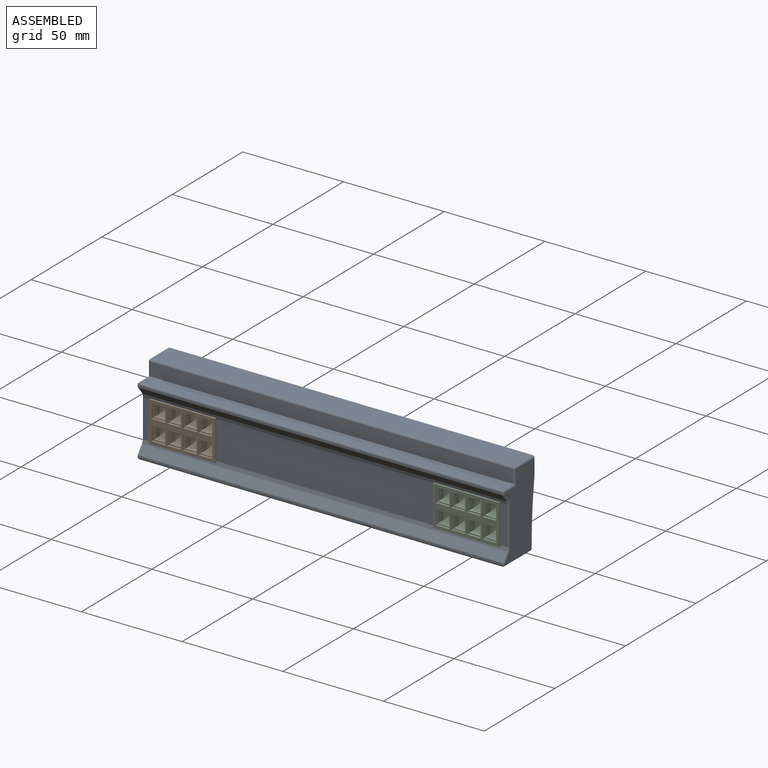
[diagram: assembled view]
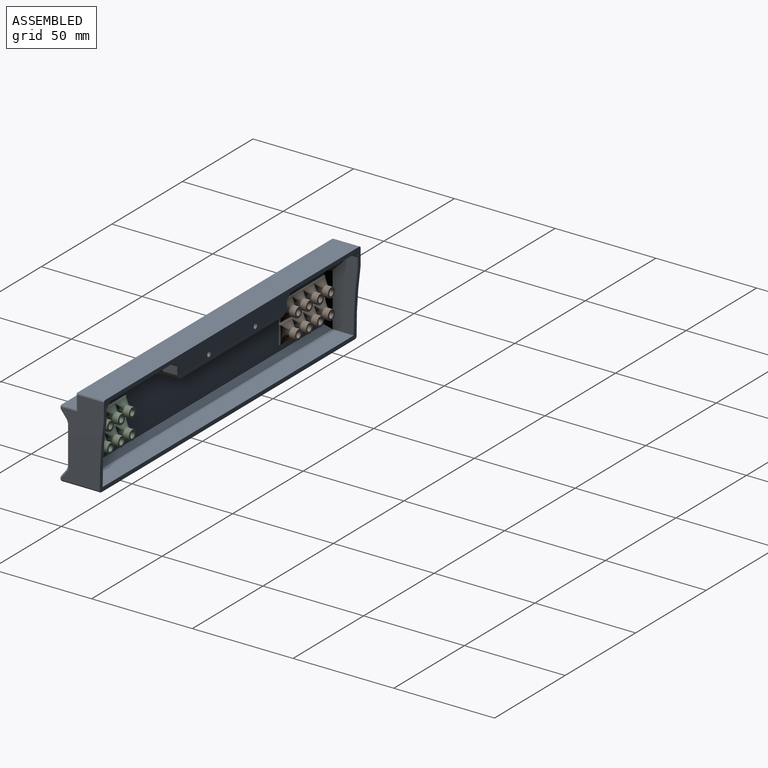
[diagram: assembled view, second angle]
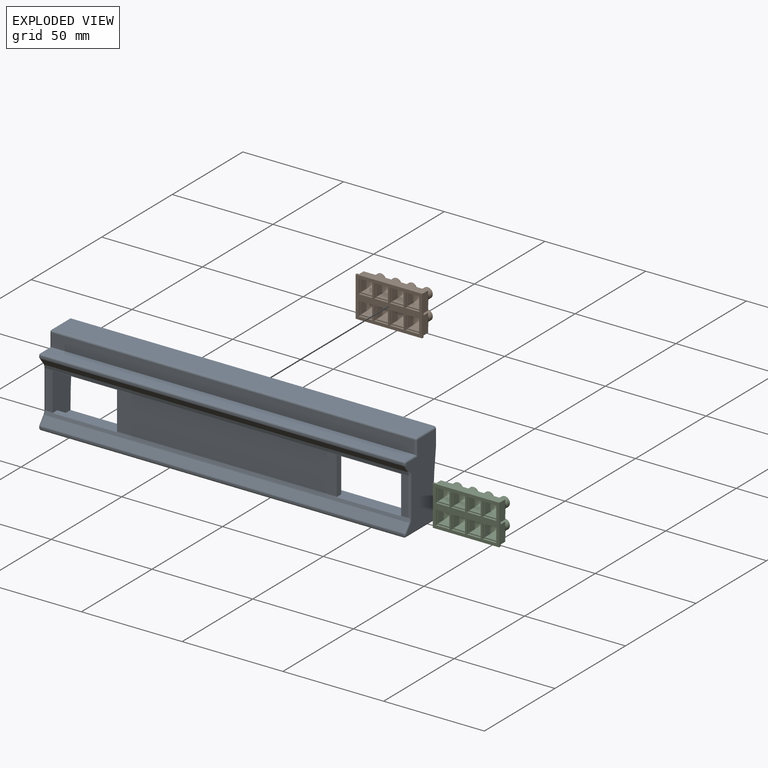
[diagram: exploded view]
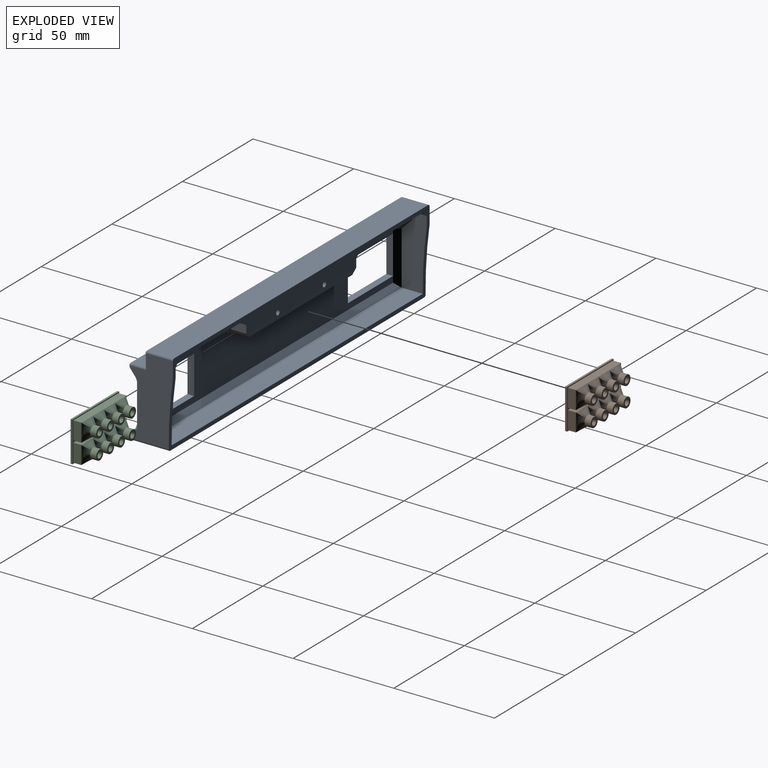
[diagram: exploded view, second angle]
ASSEMBLY  parts=3 mates=2
PART A: 100 faces, bbox 182x22x42 mm
  f0: plane 35.5x12.5mm, normal (-1,0,0), area 368.6mm2, adj f3,f4,f64,f85,f91,f95,f96
  f1: plane 35.5x12.5mm, normal (1,0,0), area 368.6mm2, adj f3,f4,f64,f78,f83,f89,f90
  f2: plane 83x12.24mm, normal (0,0,-1), area 918.2mm2, adj f24,f81,f88,f94,f98,f99
  f3: plane 182x9mm, normal (0,1,0), area 940mm2, adj f0,f1,f4,f14,f17,f18,f24,f30
  f4: cylinder r=220mm len=182mm, axis (-1,0,0), area 487.4mm2, adj f0,f1,f3,f13,f14,f17,f31,f57
  f5: plane 32x3.3mm, normal (0,0,-1), area 105.7mm2, adj f6,f8,f20,f65
  f6: plane 19x3.38mm, normal (1,0,0), area 62.8mm2, adj f5,f7,f20,f62,f65
  f7: plane 32x3.38mm, normal (0,0,1), area 108.2mm2, adj f6,f8,f62,f65
  f8: plane 19x3.38mm, normal (-1,0,0), area 62.8mm2, adj f5,f7,f20,f62,f91
  f9: plane 32x3.3mm, normal (0,0,-1), area 105.7mm2, adj f10,f12,f20,f65
  f10: plane 19x3.38mm, normal (1,0,0), area 62.8mm2, adj f9,f11,f20,f62,f90
  f11: plane 32x3.38mm, normal (0,0,1), area 108.2mm2, adj f10,f12,f62,f65
  f12: plane 19x3.38mm, normal (-1,0,0), area 62.8mm2, adj f9,f11,f20,f62,f65
  f13: plane 180x19mm, normal (0,0,-1), area 3420mm2, adj f4,f29,f31,f57
  f14: plane 40x21mm, normal (-1,0,0), area 637.2mm2, adj f3,f4,f44,f46,f47,f49,f51,f52
  f15: plane 180x0.66mm, normal (0,-1,0), area 117.9mm2, adj f27,f29,f35,f55
  f16: plane 180x0.66mm, normal (0,-1,0), area 117.9mm2, adj f25,f28,f40,f49
  f17: plane 40x21mm, normal (1,0,0), area 637.2mm2, adj f3,f4,f30,f31,f34,f35,f36,f39
  f18: plane 180x13mm, normal (0,0,1), area 2340mm2, adj f3,f26,f30,f44
  f19: plane 180x3.67mm, normal (0,-0.79,-0.62), area 837.9mm2, adj f28,f43,f51,f59
  f20: plane 180x19mm, normal (0,-1,0), area 2218.4mm2, adj f5,f6,f8,f9,f10,f12,f41,f52
  f21: plane 180x3.67mm, normal (0,-0.79,0.62), area 837.9mm2, adj f27,f39,f53,f62
  f22: plane 180x6.55mm, normal (0,-1,0), area 1179mm2, adj f23,f26,f34,f46
  f23: plane 180x7mm, normal (0,0,1), area 1260mm2, adj f22,f25,f36,f47
  f24: cylinder r=220mm len=77mm, axis (-1,0,0), area 151.3mm2, adj f2,f3,f81,f98
  f25: cylinder r=1mm len=180mm, axis (1,0,0), area 282.7mm2, adj f16,f23,f38,f48
  f26: cylinder r=1mm len=180mm, axis (-1,0,0), area 282.7mm2, adj f18,f22,f32,f45
  f27: cylinder r=1mm len=180mm, axis (-1,0,0), area 119.5mm2, adj f15,f21,f37,f54
  f28: cylinder r=1mm len=180mm, axis (1,0,0), area 119.5mm2, adj f16,f19,f42,f50
  f29: cylinder r=1mm len=180mm, axis (-1,0,0), area 282.7mm2, adj f13,f15,f33,f56
  f30: cylinder r=1mm len=13mm, axis (0,1,0), area 20.4mm2, adj f3,f17,f18,f32
  f31: cylinder r=1mm len=19mm, axis (0,-1,0), area 29.8mm2, adj f4,f13,f17,f33
  f32: sphere r=1mm, area 1.6mm2, adj f26,f30,f34
  f33: sphere r=1mm, area 1.6mm2, adj f29,f31,f35
  f34: cylinder r=1mm len=7.55mm, axis (0,0,-1), area 11.1mm2, adj f17,f22,f32,f36
  f35: cylinder r=1mm len=1mm, axis (0,0,-1), area 1mm2, adj f15,f17,f33,f37
  f36: cylinder r=1mm len=8mm, axis (0,-1,0), area 11.8mm2, adj f17,f23,f34,f38
  f37: sphere r=1mm, area 0.7mm2, adj f27,f35,f39
  f38: sphere r=1mm, area 1.6mm2, adj f25,f36,f40
  f39: cylinder r=1mm len=5.34mm, axis (0,-0.62,-0.79), area 8.4mm2, adj f17,f21,f37,f63
  f40: cylinder r=1mm len=1mm, axis (0,0,-1), area 1mm2, adj f16,f17,f38,f42
  f41: cylinder r=1mm len=21.69mm, axis (0,0,-1), area 32mm2, adj f17,f20,f60,f63
  f42: sphere r=1mm, area 0.7mm2, adj f28,f40,f43
  f43: cylinder r=1mm len=5.34mm, axis (0,0.62,-0.79), area 8.4mm2, adj f17,f19,f42,f60
  f44: cylinder r=1mm len=13mm, axis (0,-1,0), area 20.4mm2, adj f3,f14,f18,f45
  f45: sphere r=1mm, area 1.6mm2, adj f26,f44,f46
  f46: cylinder r=1mm len=7.55mm, axis (0,0,-1), area 11.1mm2, adj f14,f22,f45,f47
  f47: cylinder r=1mm len=8mm, axis (0,-1,0), area 11.8mm2, adj f14,f23,f46,f48
  f48: sphere r=1mm, area 1.6mm2, adj f25,f47,f49
  f49: cylinder r=1mm len=1mm, axis (0,0,1), area 1mm2, adj f14,f16,f48,f50
  f50: sphere r=1mm, area 0.7mm2, adj f28,f49,f51
  f51: cylinder r=1mm len=5.34mm, axis (0,0.62,-0.79), area 8.4mm2, adj f14,f19,f50,f58
  f52: cylinder r=1mm len=21.69mm, axis (0,0,-1), area 32mm2, adj f14,f20,f58,f61
  f53: cylinder r=1mm len=5.34mm, axis (0,-0.62,-0.79), area 8.4mm2, adj f14,f21,f54,f61
  f54: sphere r=1mm, area 0.7mm2, adj f27,f53,f55
  f55: cylinder r=1mm len=1mm, axis (0,0,1), area 1mm2, adj f14,f15,f54,f56
  f56: sphere r=1mm, area 1.6mm2, adj f29,f55,f57
  f57: cylinder r=1mm len=19mm, axis (0,1,0), area 29.8mm2, adj f4,f13,f14,f56
  f58: bspline ~1.81x1.64mm, area 1.3mm2, adj f51,f52,f59
  f59: plane 180x1.79mm, normal (0,-0.95,-0.33), area 340.3mm2, adj f19,f20,f58,f60
  f60: bspline ~1.81x1.64mm, area 1.3mm2, adj f41,f43,f59
  f61: bspline ~1.81x1.64mm, area 1.3mm2, adj f52,f53,f62
  f62: plane 180x1.79mm, normal (0,-0.95,0.33), area 325.1mm2, adj f6,f7,f8,f10,f11,f12,f20,f21
  f63: bspline ~1.81x1.64mm, area 1.3mm2, adj f39,f41,f62
  f64: plane 178x10.48mm, normal (0,0,1), area 1865.4mm2, adj f0,f1,f4,f84
  f65: plane 173x24mm, normal (0,1,0), area 2936mm2, adj f5,f6,f7,f9,f11,f12,f84,f90
  f66: cone r=0mm half-angle=59deg, axis (0,1,0), area 5.7mm2, adj f67
  f67: cylinder r=1.25mm len=10mm, axis (0,1,0), area 78.5mm2, adj f3,f66
  f68: cone r=0mm half-angle=59deg, axis (0,1,0), area 5.7mm2, adj f69
  f69: cylinder r=1.25mm len=10mm, axis (0,1,0), area 78.5mm2, adj f3,f68
  f70: plane 7.5x4mm, normal (-1,0,0), area 30mm2, adj f3,f76,f81,f82
  f71: plane 45x7.5mm, normal (0,0,-1), area 337.5mm2, adj f3,f76,f77,f78
  f72: plane 45x4mm, normal (0,1,0), area 180mm2, adj f77,f82,f83,f94
  f73: plane 7.5x4mm, normal (1,0,0), area 30mm2, adj f3,f87,f97,f98
  f74: plane 45x7.5mm, normal (0,0,-1), area 337.5mm2, adj f3,f85,f86,f87
  f75: plane 45x4mm, normal (0,1,0), area 180mm2, adj f86,f94,f96,f97
  f76: plane 7.5x2.5mm, normal (-0.71,0,-0.71), area 26.5mm2, adj f3,f70,f71,f79
  f77: plane 45x2.5mm, normal (0,0.71,-0.71), area 159.1mm2, adj f71,f72,f79,f80
  f78: plane 7.5x2.5mm, normal (0.71,0,-0.71), area 26.5mm2, adj f1,f3,f71,f80
  f79: plane 2.5x2.5mm, normal (-0.58,0.58,-0.58), area 5.4mm2, adj f76,f77,f82
  f80: plane 2.5x2.5mm, normal (0.58,0.58,-0.58), area 5.4mm2, adj f77,f78,f83
  f81: plane 7.5x2.5mm, normal (-0.71,0,-0.71), area 26.1mm2, adj f2,f3,f24,f70,f88
  f82: plane 4x2.5mm, normal (-0.71,0.71,0), area 14.1mm2, adj f70,f72,f79,f88
  f83: plane 4x2.5mm, normal (0.71,0.71,0), area 14.1mm2, adj f1,f72,f80,f89
  f84: plane 178x2.5mm, normal (0,0.71,0.71), area 620.5mm2, adj f64,f65,f90,f91
  f85: plane 7.5x2.5mm, normal (-0.71,0,-0.71), area 26.5mm2, adj f0,f3,f74,f92
  f86: plane 45x2.5mm, normal (0,0.71,-0.71), area 159.1mm2, adj f74,f75,f92,f93
  f87: plane 7.5x2.5mm, normal (0.71,0,-0.71), area 26.5mm2, adj f3,f73,f74,f93
  f88: plane 5x5mm, normal (-0.58,0.58,-0.58), area 16.2mm2, adj f2,f81,f82,f94
  f89: plane 7.5x5mm, normal (0.58,0.58,-0.58), area 21.7mm2, adj f1,f83,f90,f94
  f90: plane 26.5x2.5mm, normal (0.71,0.71,0), area 89.3mm2, adj f1,f10,f65,f84,f89
  f91: plane 26.5x2.5mm, normal (-0.71,0.71,0), area 89.3mm2, adj f0,f8,f65,f84,f95
  f92: plane 2.5x2.5mm, normal (-0.58,0.58,-0.58), area 5.4mm2, adj f85,f86,f96
  f93: plane 2.5x2.5mm, normal (0.58,0.58,-0.58), area 5.4mm2, adj f86,f87,f97
  f94: plane 173x5mm, normal (0,0.71,-0.71), area 929.8mm2, adj f2,f65,f72,f75,f88,f89,f95,f99
  f95: plane 7.5x5mm, normal (-0.58,0.58,-0.58), area 21.7mm2, adj f0,f91,f94,f96
  f96: plane 4x2.5mm, normal (-0.71,0.71,0), area 14.1mm2, adj f0,f75,f92,f95
  f97: plane 4x2.5mm, normal (0.71,0.71,0), area 14.1mm2, adj f73,f75,f93,f99
  f98: plane 7.5x2.5mm, normal (0.71,0,-0.71), area 26.1mm2, adj f2,f3,f24,f73,f99
  f99: plane 5x5mm, normal (0.58,0.58,-0.58), area 16.2mm2, adj f2,f94,f97,f98
PART B: 176 faces, bbox 33x11x20 mm
  f0: plane 6.75x1mm, normal (0,0,-1), area 6.7mm2, adj f1,f3,f21,f82
  f1: plane 7x1mm, normal (-1,0,0), area 7mm2, adj f0,f2,f21,f82
  f2: plane 6.75x1mm, normal (0,0,1), area 6.7mm2, adj f1,f3,f21,f82
  f3: plane 7x1mm, normal (1,0,0), area 7mm2, adj f0,f2,f21,f82
  f4: plane 9x0.5mm, normal (0,1,0), area 4.5mm2, adj f22,f24,f25,f75
  f5: plane 7x1mm, normal (1,0,0), area 7mm2, adj f6,f8,f21,f66
  f6: plane 6.75x1mm, normal (0,0,-1), area 6.8mm2, adj f5,f7,f21,f66
  f7: plane 7x1mm, normal (-1,0,0), area 7mm2, adj f6,f8,f21,f66
  f8: plane 6.75x1mm, normal (0,0,1), area 6.8mm2, adj f5,f7,f21,f66
  f9: plane 7x1mm, normal (1,0,0), area 7mm2, adj f10,f12,f21,f50
  f10: plane 6.75x1mm, normal (0,0,-1), area 6.8mm2, adj f9,f11,f21,f50
  f11: plane 7x1mm, normal (-1,0,0), area 7mm2, adj f10,f12,f21,f50
  f12: plane 6.75x1mm, normal (0,0,1), area 6.8mm2, adj f9,f11,f21,f50
  f13: plane 7x1mm, normal (1,0,0), area 7mm2, adj f14,f16,f21,f34
  f14: plane 6.75x1mm, normal (0,0,-1), area 6.7mm2, adj f13,f15,f21,f34
  f15: plane 7x1mm, normal (-1,0,0), area 7mm2, adj f14,f16,f21,f34
  f16: plane 6.75x1mm, normal (0,0,1), area 6.7mm2, adj f13,f15,f21,f34
  f17: plane 20x1mm, normal (-1,0,0), area 20mm2, adj f18,f20,f21,f107
  f18: plane 33x1mm, normal (0,0,-1), area 33mm2, adj f17,f19,f20,f21
  f19: plane 20x1mm, normal (1,0,0), area 20mm2, adj f18,f20,f21,f107
  f20: plane 33x20mm, normal (0,1,0), area 84mm2, adj f17,f18,f19,f22,f23,f24,f25,f107
  f21: plane 33x20mm, normal (0,-1,0), area 282mm2, adj f0,f1,f2,f3,f5,f6,f7,f8
  f22: plane 32x4mm, normal (0,0,-1), area 128mm2, adj f4,f20,f23,f25,f28,f44,f60,f76
  f23: plane 9x4mm, normal (1,0,0), area 36mm2, adj f20,f22,f24,f29
  f24: plane 32x4mm, normal (0,0,1), area 128mm2, adj f4,f20,f23,f25,f26,f42,f58,f74
  f25: plane 9x4mm, normal (-1,0,0), area 36mm2, adj f4,f20,f22,f24
  f26: bspline ~8.25x3mm, area 23mm2, adj f24,f27,f29,f40,f42
  f27: bspline ~8.42x2.68mm, area 18.4mm2, adj f26,f28,f40,f45
  f28: bspline ~8.25x3mm, area 23mm2, adj f22,f27,f29,f40,f44
  f29: bspline ~9x3mm, area 24.1mm2, adj f23,f26,f28,f40
  f30: bspline ~6x3mm, area 14.3mm2, adj f31,f33,f37,f39
  f31: bspline ~6x3mm, area 14.3mm2, adj f30,f32,f38,f39
  f32: bspline ~6x3mm, area 14.3mm2, adj f31,f33,f36,f39
  f33: bspline ~6x3mm, area 14.3mm2, adj f30,f32,f35,f39
  f34: plane 7x6.75mm, normal (0,-1,0), area 11.2mm2, adj f13,f14,f15,f16,f35,f36,f37,f38
  f35: plane 6x4mm, normal (0,0,-1), area 24mm2, adj f33,f34,f36,f37
  f36: plane 6x4mm, normal (1,0,0), area 24mm2, adj f32,f34,f35,f38
  f37: plane 6x4mm, normal (-1,0,0), area 24mm2, adj f30,f34,f35,f38
  f38: plane 6x4mm, normal (0,0,1), area 24mm2, adj f31,f34,f36,f37
  f39: cylinder r=1.5mm len=3mm, axis (0,-1,0), area 28.3mm2, adj f30,f31,f32,f33,f41
  f40: cylinder r=2.5mm len=5mm, axis (0,-1,0), area 47.1mm2, adj f26,f27,f28,f29,f41
  f41: plane 5x5mm, normal (0,1,0), area 12.6mm2, adj f39,f40
  f42: bspline ~8.25x3mm, area 22.9mm2, adj f24,f26,f43,f45,f56,f58
  f43: bspline ~8.42x2.68mm, area 18.4mm2, adj f42,f44,f56,f61
  f44: bspline ~8.25x3mm, area 22.9mm2, adj f22,f28,f43,f45,f56,f60
  f45: bspline ~8.42x2.68mm, area 19.8mm2, adj f27,f42,f44,f56
  f46: bspline ~6x3mm, area 14.3mm2, adj f47,f49,f53,f55
  f47: bspline ~6x3mm, area 14.3mm2, adj f46,f48,f54,f55
  f48: bspline ~6x3mm, area 14.3mm2, adj f47,f49,f52,f55
  f49: bspline ~6x3mm, area 14.3mm2, adj f46,f48,f51,f55
  f50: plane 7x6.75mm, normal (0,-1,0), area 11.3mm2, adj f9,f10,f11,f12,f51,f52,f53,f54
  f51: plane 6x4mm, normal (0,0,-1), area 24mm2, adj f49,f50,f52,f53
  f52: plane 6x4mm, normal (1,0,0), area 24mm2, adj f48,f50,f51,f54
  f53: plane 6x4mm, normal (-1,0,0), area 24mm2, adj f46,f50,f51,f54
  f54: plane 6x4mm, normal (0,0,1), area 24mm2, adj f47,f50,f52,f53
  f55: cylinder r=1.5mm len=3mm, axis (0,-1,0), area 28.3mm2, adj f46,f47,f48,f49,f57
  f56: cylinder r=2.5mm len=5mm, axis (0,-1,0), area 47.1mm2, adj f42,f43,f44,f45,f57
  f57: plane 5x5mm, normal (0,1,0), area 12.6mm2, adj f55,f56
  f58: bspline ~8.25x3mm, area 22.9mm2, adj f24,f42,f59,f61,f72,f74
  f59: bspline ~8.42x2.68mm, area 18.4mm2, adj f58,f60,f72,f77
  f60: bspline ~8.25x3mm, area 22.9mm2, adj f22,f44,f59,f61,f72,f76
  f61: bspline ~8.42x2.68mm, area 19.8mm2, adj f43,f58,f60,f72
  f62: bspline ~6x3mm, area 14.3mm2, adj f63,f65,f69,f71
  f63: bspline ~6x3mm, area 14.3mm2, adj f62,f64,f70,f71
  f64: bspline ~6x3mm, area 14.3mm2, adj f63,f65,f68,f71
  f65: bspline ~6x3mm, area 14.3mm2, adj f62,f64,f67,f71
  f66: plane 7x6.75mm, normal (0,-1,0), area 11.3mm2, adj f5,f6,f7,f8,f67,f68,f69,f70
  f67: plane 6x4mm, normal (0,0,-1), area 24mm2, adj f65,f66,f68,f69
  f68: plane 6x4mm, normal (1,0,0), area 24mm2, adj f64,f66,f67,f70
  f69: plane 6x4mm, normal (-1,0,0), area 24mm2, adj f62,f66,f67,f70
  f70: plane 6x4mm, normal (0,0,1), area 24mm2, adj f63,f66,f68,f69
  f71: cylinder r=1.5mm len=3mm, axis (0,-1,0), area 28.3mm2, adj f62,f63,f64,f65,f73
  f72: cylinder r=2.5mm len=5mm, axis (0,-1,0), area 47.1mm2, adj f58,f59,f60,f61,f73
  f73: plane 5x5mm, normal (0,1,0), area 12.6mm2, adj f71,f72
  f74: bspline ~8.25x3mm, area 23mm2, adj f24,f58,f75,f77,f88
  f75: bspline ~9x3mm, area 22.4mm2, adj f4,f74,f76,f88
  f76: bspline ~8.25x3mm, area 23mm2, adj f22,f60,f75,f77,f88
  f77: bspline ~8.42x2.68mm, area 19.8mm2, adj f59,f74,f76,f88
  f78: bspline ~6x3mm, area 14.3mm2, adj f79,f81,f85,f87
  f79: bspline ~6x3mm, area 14.3mm2, adj f78,f80,f86,f87
  f80: bspline ~6x3mm, area 14.3mm2, adj f79,f81,f84,f87
  f81: bspline ~6x3mm, area 14.3mm2, adj f78,f80,f83,f87
  f82: plane 7x6.75mm, normal (0,-1,0), area 11.2mm2, adj f0,f1,f2,f3,f83,f84,f85,f86
  f83: plane 6x4mm, normal (0,0,-1), area 24mm2, adj f81,f82,f84,f85
  f84: plane 6x4mm, normal (1,0,0), area 24mm2, adj f80,f82,f83,f86
  f85: plane 6x4mm, normal (-1,0,0), area 24mm2, adj f78,f82,f83,f86
  f86: plane 6x4mm, normal (0,0,1), area 24mm2, adj f79,f82,f84,f85
  f87: cylinder r=1.5mm len=3mm, axis (0,-1,0), area 28.3mm2, adj f78,f79,f80,f81,f89
  f88: cylinder r=2.5mm len=5mm, axis (0,-1,0), area 47.1mm2, adj f74,f75,f76,f77,f89
  f89: plane 5x5mm, normal (0,1,0), area 12.6mm2, adj f87,f88
  f90: plane 6.75x1mm, normal (0,0,-1), area 6.7mm2, adj f21,f91,f93,f168
  f91: plane 7x1mm, normal (-1,0,0), area 7mm2, adj f21,f90,f92,f168
  f92: plane 6.75x1mm, normal (0,0,1), area 6.7mm2, adj f21,f91,f93,f168
  f93: plane 7x1mm, normal (1,0,0), area 7mm2, adj f21,f90,f92,f168
  f94: plane 9x0.5mm, normal (0,1,0), area 4.5mm2, adj f108,f110,f111,f161
  f95: plane 7x1mm, normal (1,0,0), area 7mm2, adj f21,f96,f98,f152
  f96: plane 6.75x1mm, normal (0,0,-1), area 6.8mm2, adj f21,f95,f97,f152
  f97: plane 7x1mm, normal (-1,0,0), area 7mm2, adj f21,f96,f98,f152
  f98: plane 6.75x1mm, normal (0,0,1), area 6.8mm2, adj f21,f95,f97,f152
  f99: plane 7x1mm, normal (1,0,0), area 7mm2, adj f21,f100,f102,f136
  f100: plane 6.75x1mm, normal (0,0,-1), area 6.8mm2, adj f21,f99,f101,f136
  f101: plane 7x1mm, normal (-1,0,0), area 7mm2, adj f21,f100,f102,f136
  f102: plane 6.75x1mm, normal (0,0,1), area 6.8mm2, adj f21,f99,f101,f136
  f103: plane 7x1mm, normal (1,0,0), area 7mm2, adj f21,f104,f106,f120
  f104: plane 6.75x1mm, normal (0,0,-1), area 6.7mm2, adj f21,f103,f105,f120
  f105: plane 7x1mm, normal (-1,0,0), area 7mm2, adj f21,f104,f106,f120
  f106: plane 6.75x1mm, normal (0,0,1), area 6.7mm2, adj f21,f103,f105,f120
  f107: plane 33x1mm, normal (0,0,1), area 33mm2, adj f17,f19,f20,f21
  f108: plane 32x4mm, normal (0,0,-1), area 128mm2, adj f20,f94,f109,f111,f114,f130,f146,f162
  f109: plane 9x4mm, normal (1,0,0), area 36mm2, adj f20,f108,f110,f115
  f110: plane 32x4mm, normal (0,0,1), area 128mm2, adj f20,f94,f109,f111,f112,f128,f144,f160
  f111: plane 9x4mm, normal (-1,0,0), area 36mm2, adj f20,f94,f108,f110
  f112: bspline ~8.25x3mm, area 23mm2, adj f110,f113,f115,f126,f128
  f113: bspline ~8.42x2.68mm, area 18.4mm2, adj f112,f114,f126,f131
  f114: bspline ~8.25x3mm, area 23mm2, adj f108,f113,f115,f126,f130
  f115: bspline ~9x3mm, area 24.1mm2, adj f109,f112,f114,f126
  f116: bspline ~6x3mm, area 14.3mm2, adj f117,f119,f123,f125
  f117: bspline ~6x3mm, area 14.3mm2, adj f116,f118,f124,f125
  f118: bspline ~6x3mm, area 14.3mm2, adj f117,f119,f122,f125
  f119: bspline ~6x3mm, area 14.3mm2, adj f116,f118,f121,f125
  f120: plane 7x6.75mm, normal (0,-1,0), area 11.2mm2, adj f103,f104,f105,f106,f121,f122,f123,f124
  f121: plane 6x4mm, normal (0,0,-1), area 24mm2, adj f119,f120,f122,f123
  f122: plane 6x4mm, normal (1,0,0), area 24mm2, adj f118,f120,f121,f124
  f123: plane 6x4mm, normal (-1,0,0), area 24mm2, adj f116,f120,f121,f124
  f124: plane 6x4mm, normal (0,0,1), area 24mm2, adj f117,f120,f122,f123
  f125: cylinder r=1.5mm len=3mm, axis (0,-1,0), area 28.3mm2, adj f116,f117,f118,f119,f127
  f126: cylinder r=2.5mm len=5mm, axis (0,-1,0), area 47.1mm2, adj f112,f113,f114,f115,f127
  f127: plane 5x5mm, normal (0,1,0), area 12.6mm2, adj f125,f126
  f128: bspline ~8.25x3mm, area 22.9mm2, adj f110,f112,f129,f131,f142,f144
  f129: bspline ~8.42x2.68mm, area 18.4mm2, adj f128,f130,f142,f147
  f130: bspline ~8.25x3mm, area 22.9mm2, adj f108,f114,f129,f131,f142,f146
  f131: bspline ~8.42x2.68mm, area 19.8mm2, adj f113,f128,f130,f142
  f132: bspline ~6x3mm, area 14.3mm2, adj f133,f135,f139,f141
  f133: bspline ~6x3mm, area 14.3mm2, adj f132,f134,f140,f141
  f134: bspline ~6x3mm, area 14.3mm2, adj f133,f135,f138,f141
  f135: bspline ~6x3mm, area 14.3mm2, adj f132,f134,f137,f141
  f136: plane 7x6.75mm, normal (0,-1,0), area 11.3mm2, adj f99,f100,f101,f102,f137,f138,f139,f140
  f137: plane 6x4mm, normal (0,0,-1), area 24mm2, adj f135,f136,f138,f139
  f138: plane 6x4mm, normal (1,0,0), area 24mm2, adj f134,f136,f137,f140
  f139: plane 6x4mm, normal (-1,0,0), area 24mm2, adj f132,f136,f137,f140
  f140: plane 6x4mm, normal (0,0,1), area 24mm2, adj f133,f136,f138,f139
  f141: cylinder r=1.5mm len=3mm, axis (0,-1,0), area 28.3mm2, adj f132,f133,f134,f135,f143
  f142: cylinder r=2.5mm len=5mm, axis (0,-1,0), area 47.1mm2, adj f128,f129,f130,f131,f143
  f143: plane 5x5mm, normal (0,1,0), area 12.6mm2, adj f141,f142
  f144: bspline ~8.25x3mm, area 22.9mm2, adj f110,f128,f145,f147,f158,f160
  f145: bspline ~8.42x2.68mm, area 18.4mm2, adj f144,f146,f158,f163
  f146: bspline ~8.25x3mm, area 22.9mm2, adj f108,f130,f145,f147,f158,f162
  f147: bspline ~8.42x2.68mm, area 19.8mm2, adj f129,f144,f146,f158
  f148: bspline ~6x3mm, area 14.3mm2, adj f149,f151,f155,f157
  f149: bspline ~6x3mm, area 14.3mm2, adj f148,f150,f156,f157
  f150: bspline ~6x3mm, area 14.3mm2, adj f149,f151,f154,f157
  f151: bspline ~6x3mm, area 14.3mm2, adj f148,f150,f153,f157
  f152: plane 7x6.75mm, normal (0,-1,0), area 11.3mm2, adj f95,f96,f97,f98,f153,f154,f155,f156
  f153: plane 6x4mm, normal (0,0,-1), area 24mm2, adj f151,f152,f154,f155
  f154: plane 6x4mm, normal (1,0,0), area 24mm2, adj f150,f152,f153,f156
  f155: plane 6x4mm, normal (-1,0,0), area 24mm2, adj f148,f152,f153,f156
  f156: plane 6x4mm, normal (0,0,1), area 24mm2, adj f149,f152,f154,f155
  f157: cylinder r=1.5mm len=3mm, axis (0,-1,0), area 28.3mm2, adj f148,f149,f150,f151,f159
  f158: cylinder r=2.5mm len=5mm, axis (0,-1,0), area 47.1mm2, adj f144,f145,f146,f147,f159
  f159: plane 5x5mm, normal (0,1,0), area 12.6mm2, adj f157,f158
  f160: bspline ~8.25x3mm, area 23mm2, adj f110,f144,f161,f163,f174
  f161: bspline ~9x3mm, area 22.4mm2, adj f94,f160,f162,f174
  f162: bspline ~8.25x3mm, area 23mm2, adj f108,f146,f161,f163,f174
  f163: bspline ~8.42x2.68mm, area 19.8mm2, adj f145,f160,f162,f174
  f164: bspline ~6x3mm, area 14.3mm2, adj f165,f167,f171,f173
  f165: bspline ~6x3mm, area 14.3mm2, adj f164,f166,f172,f173
  f166: bspline ~6x3mm, area 14.3mm2, adj f165,f167,f170,f173
  f167: bspline ~6x3mm, area 14.3mm2, adj f164,f166,f169,f173
  f168: plane 7x6.75mm, normal (0,-1,0), area 11.2mm2, adj f90,f91,f92,f93,f169,f170,f171,f172
  f169: plane 6x4mm, normal (0,0,-1), area 24mm2, adj f167,f168,f170,f171
  f170: plane 6x4mm, normal (1,0,0), area 24mm2, adj f166,f168,f169,f172
  f171: plane 6x4mm, normal (-1,0,0), area 24mm2, adj f164,f168,f169,f172
  f172: plane 6x4mm, normal (0,0,1), area 24mm2, adj f165,f168,f170,f171
  f173: cylinder r=1.5mm len=3mm, axis (0,-1,0), area 28.3mm2, adj f164,f165,f166,f167,f175
  f174: cylinder r=2.5mm len=5mm, axis (0,-1,0), area 47.1mm2, adj f160,f161,f162,f163,f175
  f175: plane 5x5mm, normal (0,1,0), area 12.6mm2, adj f173,f174
PART C: same geometry as B
PLACE A at identity fixed
PLACE B rot(axis=(1,0,0),0deg) t=(-41.64,-19.3,-136.07)mm
PLACE C rot(axis=(1,0,0),0deg) t=(99.36,-19.3,-136.07)mm
MATE fastened B.f20 <-> A.f20  axis (0,1,0) through (-58.14,-18.3,-131.07)mm
MATE fastened A.f20 <-> C.f20  axis (0,-1,0) through (83.36,-18.3,-131.07)mm
